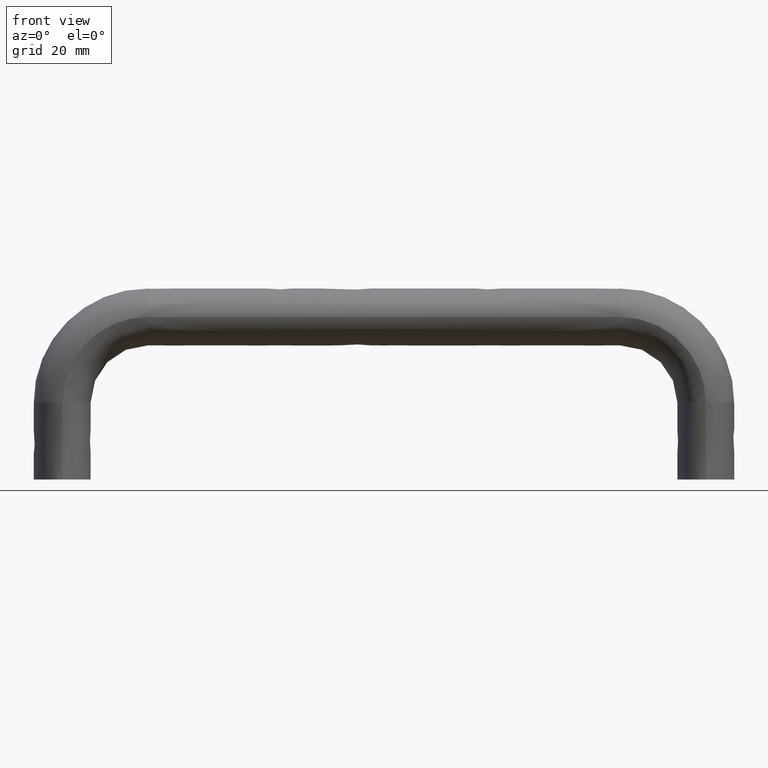
[diagram: clean part render]
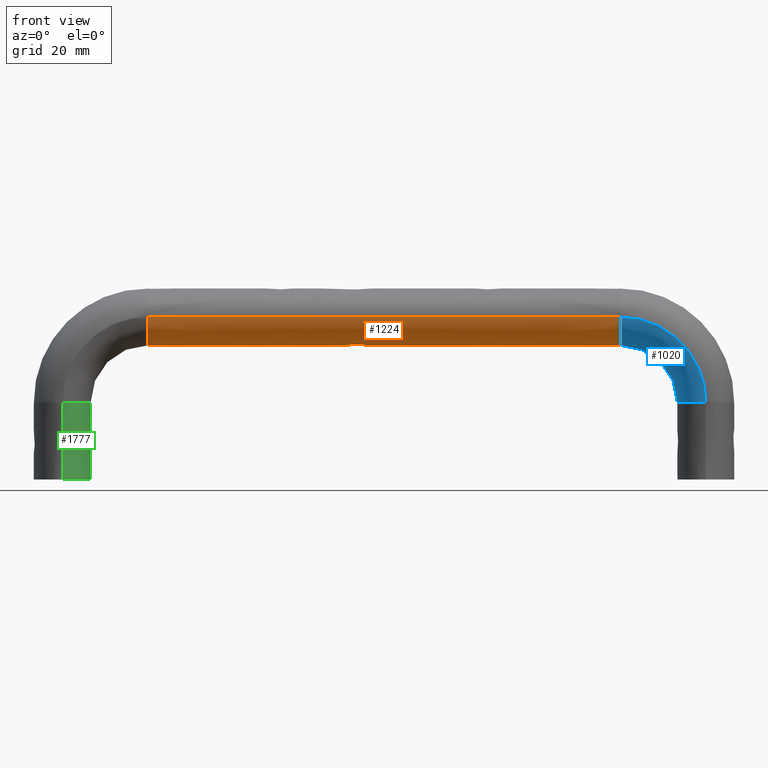
[diagram: same view with three faces highlighted in distinct colors, each labeled with its STEP entity id]
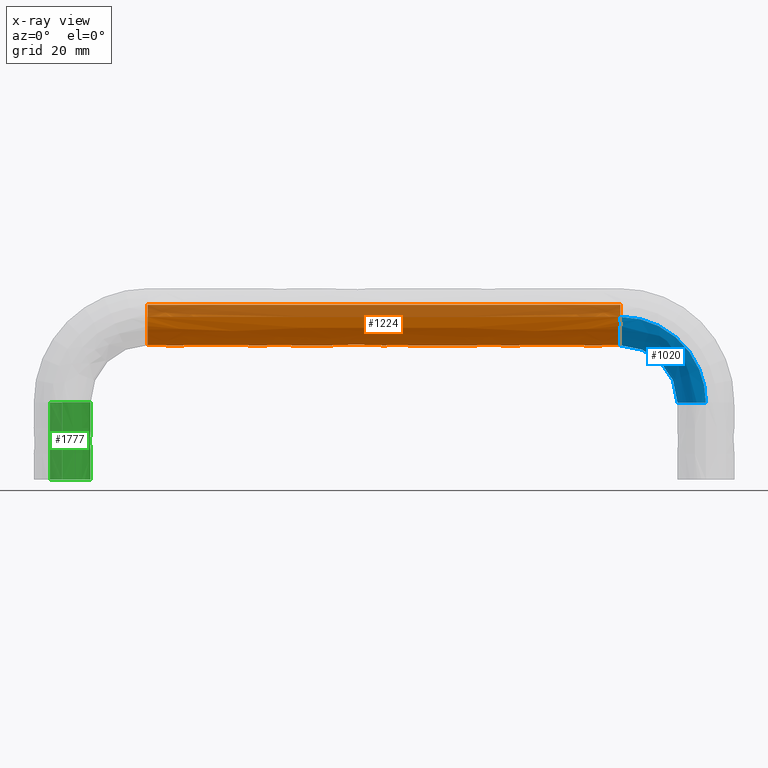
[diagram: x-ray of the same camera — body ghosted, the three highlighted faces saturated]
A machine part, front view with three faces highlighted in distinct colors.
The next image is the same camera in x-ray (body ghosted, the three faces saturated) — at least one of them is partly hidden behind the body in this view.
Their STEP definitions:

[orange] entity #1224 — the highlighted face is a freeform B-spline surface patch.
#850=CARTESIAN_POINT('',(166.500000000000000,11.762639561952421,44.880946613731197));
#851=VERTEX_POINT('',#850);
#865=CARTESIAN_POINT('',(166.500000000000000,13.0,48.500007999999987));
#866=VERTEX_POINT('',#865);
#867=CARTESIAN_POINT('',(166.500000000000000,11.762639561952421,44.880946613731197));
#868=CARTESIAN_POINT('',(166.500000000000000,11.849651458850300,45.001723964544240));
#869=CARTESIAN_POINT('',(166.500000000000000,11.932291401725539,45.123848960485148));
#870=CARTESIAN_POINT('',(166.500000000000000,12.661644796688099,46.275150982946101));
#871=CARTESIAN_POINT('',(166.500000000000000,13.0,47.387360601853601));
#872=CARTESIAN_POINT('',(166.500000000000000,13.0,48.500007999999987));
#873=B_SPLINE_CURVE_WITH_KNOTS('',3,(#867,#868,#869,#870,#871,#872),.UNSPECIFIED.,.F.,.U.,(4,2,4),(0.430000267191079,0.437500000000000,0.500000000000000),.UNSPECIFIED.);
#874=EDGE_CURVE('',#851,#866,#873,.T.);
#876=CARTESIAN_POINT('',(166.500000000000000,11.762630262037840,52.119082295067372));
#877=VERTEX_POINT('',#876);
#878=CARTESIAN_POINT('',(166.500000000000000,13.0,48.500007999999987));
#879=CARTESIAN_POINT('',(166.500000000000000,13.0,49.612655398146401));
#880=CARTESIAN_POINT('',(166.500000000000000,12.661644796688099,50.724865017053901));
#881=CARTESIAN_POINT('',(166.500000000000000,11.932288617726471,51.876171434124942));
#882=CARTESIAN_POINT('',(166.500000000000000,11.849645570385370,51.998300737397102));
#883=CARTESIAN_POINT('',(166.500000000000000,11.762630262037840,52.119082295067372));
#884=B_SPLINE_CURVE_WITH_KNOTS('',3,(#878,#879,#880,#881,#882,#883),.UNSPECIFIED.,.F.,.U.,(4,2,4),(0.500000000000000,0.562500000000000,0.570000000003387),.UNSPECIFIED.);
#885=EDGE_CURVE('',#866,#877,#884,.T.);
#887=CARTESIAN_POINT('',(166.500000000000000,-13.0,48.500007999999987));
#888=VERTEX_POINT('',#887);
#1002=CARTESIAN_POINT('',(166.500000000000000,-13.0,48.500007999999987));
#1003=CARTESIAN_POINT('',(166.500000000000000,-13.0,47.387360601853601));
#1004=CARTESIAN_POINT('',(166.500000000000000,-12.661644796688099,46.275150982946101));
#1005=CARTESIAN_POINT('',(166.500000000000000,-11.359223048605340,44.219246666847347));
#1006=CARTESIAN_POINT('',(166.500000000000000,-10.395668951176340,43.276360880213247));
#1007=CARTESIAN_POINT('',(166.500000000000000,-6.785826563922671,40.916079319316587));
#1008=CARTESIAN_POINT('',(166.500000000000000,-3.403392041388941,40.000007999999987));
#1009=CARTESIAN_POINT('',(166.500000000000000,3.403392041388945,40.000007999999987));
#1010=CARTESIAN_POINT('',(166.500000000000000,6.785826563922680,40.916079319316587));
#1011=CARTESIAN_POINT('',(166.500000000000000,10.251280399780510,43.181952981223667));
#1012=CARTESIAN_POINT('',(166.500000000000000,11.124526485222949,43.995210183488062));
#1013=CARTESIAN_POINT('',(166.500000000000000,11.762639561952421,44.880946613731197));
#1014=B_SPLINE_CURVE_WITH_KNOTS('',3,(#1002,#1003,#1004,#1005,#1006,#1007,#1008,#1009,#1010,#1011,#1012,#1013),.UNSPECIFIED.,.F.,.U.,(4,2,2,2,2,4),(0.0,0.062500000000000,0.125000000000000,0.250000000000000,0.375000000000000,0.430000267191079),.UNSPECIFIED.);
#1015=EDGE_CURVE('',#888,#851,#1014,.T.);
#1071=CARTESIAN_POINT('',(25.500000000000000,11.762630262037840,52.119082295067372));
#1072=VERTEX_POINT('',#1071);
#1073=CARTESIAN_POINT('',(25.500000000000000,11.762630262037840,52.119082295067372));
#1074=CARTESIAN_POINT('',(72.499999963886836,11.762630262096810,52.119573459018447));
#1075=CARTESIAN_POINT('',(119.500000036113090,11.762630262096810,52.119573459018447));
#1076=CARTESIAN_POINT('',(166.500000000000000,11.762630262037840,52.119082295067372));
#1077=B_SPLINE_CURVE_WITH_KNOTS('',3,(#1073,#1074,#1075,#1076),.UNSPECIFIED.,.F.,.U.,(4,4),(0.236064415137849,0.763935584862151),.UNSPECIFIED.);
#1078=EDGE_CURVE('',#1072,#877,#1077,.T.);
#1080=CARTESIAN_POINT('',(25.500000000000011,-13.0,48.500007999999987));
#1081=VERTEX_POINT('',#1080);
#1097=CARTESIAN_POINT('',(25.500000000000000,-13.0,48.500007999999987));
#1098=CARTESIAN_POINT('',(72.499999968239862,-13.0,48.500468564901702));
#1099=CARTESIAN_POINT('',(119.500000031760090,-13.0,48.500468564901702));
#1100=CARTESIAN_POINT('',(166.500000000000000,-13.0,48.500007999999987));
#1101=B_SPLINE_CURVE_WITH_KNOTS('',3,(#1097,#1098,#1099,#1100),.UNSPECIFIED.,.F.,.U.,(4,4),(0.236064415137849,0.763935584862151),.UNSPECIFIED.);
#1102=EDGE_CURVE('',#1081,#888,#1101,.T.);
#1107=CARTESIAN_POINT('',(25.500000000000000,-13.0,48.500007999999987));
#1108=CARTESIAN_POINT('',(25.500000000000000,-13.0,47.387360601853601));
#1109=CARTESIAN_POINT('',(25.500000000000000,-12.661644796688099,46.275150982946101));
#1110=CARTESIAN_POINT('',(25.500000000000000,-11.359223048605340,44.219246666847347));
#1111=CARTESIAN_POINT('',(25.500000000000000,-10.395668951176340,43.276360880213247));
#1112=CARTESIAN_POINT('',(25.500000000000000,-6.785826563922671,40.916079319316587));
#1113=CARTESIAN_POINT('',(25.500000000000000,-3.403392041388941,40.000007999999987));
#1114=CARTESIAN_POINT('',(25.500000000000000,3.403392041388945,40.000007999999987));
#1115=CARTESIAN_POINT('',(25.500000000000000,6.785826563922680,40.916079319316587));
#1116=CARTESIAN_POINT('',(25.500000000000000,10.395668951176340,43.276360880213247));
#1117=CARTESIAN_POINT('',(25.500000000000000,11.359223048605340,44.219246666847347));
#1118=CARTESIAN_POINT('',(25.500000000000000,12.661644796688099,46.275150982946101));
#1119=CARTESIAN_POINT('',(25.500000000000000,13.0,47.387360601853601));
#1120=CARTESIAN_POINT('',(25.500000000000000,13.0,49.612655398146401));
#1121=CARTESIAN_POINT('',(25.500000000000000,12.661644796688099,50.724865017053901));
#1122=CARTESIAN_POINT('',(25.500000000000000,11.932288617761770,51.876171434069242));
#1123=CARTESIAN_POINT('',(25.500000000000000,11.849645570460019,51.998300737286783));
#1124=CARTESIAN_POINT('',(25.500000000000000,11.762630262096810,52.119082294985532));
#1125=CARTESIAN_POINT('',(72.499999968239862,-13.0,48.500468564901702));
#1126=CARTESIAN_POINT('',(72.499999969626302,-13.0,47.387811109256297));
#1127=CARTESIAN_POINT('',(72.499999971057491,-12.661644796688099,46.275590748792503));
#1128=CARTESIAN_POINT('',(72.499999973781001,-11.359223048605340,44.219665230619050));
#1129=CARTESIAN_POINT('',(72.499999975063091,-10.395668951176340,43.276769083277699));
#1130=CARTESIAN_POINT('',(72.499999978356101,-6.785826563922671,40.916459613865747));
#1131=CARTESIAN_POINT('',(72.499999979663897,-3.403392041388941,40.000376627521703));
#1132=CARTESIAN_POINT('',(72.499999979663897,3.403392041388945,40.000376627521703));
#1133=CARTESIAN_POINT('',(72.499999978356101,6.785826563922680,40.916459613865747));
#1134=CARTESIAN_POINT('',(72.499999975063091,10.395668951176340,43.276769083277749));
#1135=CARTESIAN_POINT('',(72.499999973781001,11.359223048605340,44.219665230797062));
#1136=CARTESIAN_POINT('',(72.499999971057491,12.661644796688099,46.275590748792503));
#1137=CARTESIAN_POINT('',(72.499999969626302,13.0,47.387811109089597));
#1138=CARTESIAN_POINT('',(72.499999966853395,13.0,49.613126020547099));
#1139=CARTESIAN_POINT('',(72.499999965512700,12.661644796688099,50.725345062661702));
#1140=CARTESIAN_POINT('',(72.499999964168921,11.932288617761770,51.876660675113627));
#1141=CARTESIAN_POINT('',(72.499999964026856,11.849645570460019,51.998790947986002));
#1142=CARTESIAN_POINT('',(72.499999963886836,11.762630262096810,52.119573459018447));
#1143=CARTESIAN_POINT('',(119.500000031760090,-13.0,48.500468564901702));
#1144=CARTESIAN_POINT('',(119.500000030373600,-13.0,47.387811109256297));
#1145=CARTESIAN_POINT('',(119.500000028942400,-12.661644796688099,46.275590748792503));
#1146=CARTESIAN_POINT('',(119.500000026219000,-11.359223048605340,44.219665230619050));
#1147=CARTESIAN_POINT('',(119.500000024936990,-10.395668951176340,43.276769083277699));
#1148=CARTESIAN_POINT('',(119.500000021643800,-6.785826563922671,40.916459613865747));
#1149=CARTESIAN_POINT('',(119.500000020336000,-3.403392041388941,40.000376627521703));
#1150=CARTESIAN_POINT('',(119.500000020336000,3.403392041388945,40.000376627521703));
#1151=CARTESIAN_POINT('',(119.500000021643800,6.785826563922680,40.916459613865747));
#1152=CARTESIAN_POINT('',(119.500000024936990,10.395668951176340,43.276769083277699));
#1153=CARTESIAN_POINT('',(119.500000026219000,11.359223048605340,44.219665230797062));
#1154=CARTESIAN_POINT('',(119.500000028942400,12.661644796688099,46.275590748792503));
#1155=CARTESIAN_POINT('',(119.500000030373600,13.0,47.387811109089597));
#1156=CARTESIAN_POINT('',(119.500000033146610,13.0,49.613126020547099));
#1157=CARTESIAN_POINT('',(119.500000034487200,12.661644796688099,50.725345062661702));
#1158=CARTESIAN_POINT('',(119.500000035830990,11.932288617761770,51.876660675113627));
#1159=CARTESIAN_POINT('',(119.500000035973000,11.849645570460019,51.998790947986002));
#1160=CARTESIAN_POINT('',(119.500000036113090,11.762630262096810,52.119573459018447));
#1161=CARTESIAN_POINT('',(166.500000000000000,-13.0,48.500007999999987));
#1162=CARTESIAN_POINT('',(166.500000000000000,-13.0,47.387360601853601));
#1163=CARTESIAN_POINT('',(166.500000000000000,-12.661644796688099,46.275150982946101));
#1164=CARTESIAN_POINT('',(166.500000000000000,-11.359223048605340,44.219246666847347));
#1165=CARTESIAN_POINT('',(166.500000000000000,-10.395668951176340,43.276360880213247));
#1166=CARTESIAN_POINT('',(166.500000000000000,-6.785826563922671,40.916079319316587));
#1167=CARTESIAN_POINT('',(166.500000000000000,-3.403392041388941,40.000007999999987));
#1168=CARTESIAN_POINT('',(166.500000000000000,3.403392041388945,40.000007999999987));
#1169=CARTESIAN_POINT('',(166.500000000000000,6.785826563922680,40.916079319316587));
#1170=CARTESIAN_POINT('',(166.500000000000000,10.395668951176340,43.276360880213247));
#1171=CARTESIAN_POINT('',(166.500000000000000,11.359223048605340,44.219246666847347));
#1172=CARTESIAN_POINT('',(166.500000000000000,12.661644796688099,46.275150982946101));
#1173=CARTESIAN_POINT('',(166.500000000000000,13.0,47.387360601853601));
#1174=CARTESIAN_POINT('',(166.500000000000000,13.0,49.612655398146401));
#1175=CARTESIAN_POINT('',(166.500000000000000,12.661644796688099,50.724865017053901));
#1176=CARTESIAN_POINT('',(166.500000000000000,11.932288617761770,51.876171434069242));
#1177=CARTESIAN_POINT('',(166.500000000000000,11.849645570460019,51.998300737286783));
#1178=CARTESIAN_POINT('',(166.500000000000000,11.762630262096810,52.119082294985532));
#1179=B_SPLINE_SURFACE_WITH_KNOTS('',3,3,((#1107,#1125,#1143,#1161),(#1108,#1126,#1144,#1162),(#1109,#1127,#1145,#1163),(#1110,#1128,#1146,#1164),(#1111,#1129,#1147,#1165),(#1112,#1130,#1148,#1166),(#1113,#1131,#1149,#1167),(#1114,#1132,#1150,#1168),(#1115,#1133,#1151,#1169),(#1116,#1134,#1152,#1170),(#1117,#1135,#1153,#1171),(#1118,#1136,#1154,#1172),(#1119,#1137,#1155,#1173),(#1120,#1138,#1156,#1174),(#1121,#1139,#1157,#1175),(#1122,#1140,#1158,#1176),(#1123,#1141,#1159,#1177),(#1124,#1142,#1160,#1178)),.UNSPECIFIED.,.F.,.F.,.U.,(4,2,2,2,2,2,2,2,4),(4,4),(0.0,5.001749029276328,10.003498058552660,20.006996117105309,30.010494175657971,35.012243204934300,40.013992234210633,45.015741263486952,45.615951147000111),(0.0,141.000000036968690),.UNSPECIFIED.);
#1180=ORIENTED_EDGE('',*,*,#885,.F.);
#1181=ORIENTED_EDGE('',*,*,#874,.F.);
#1182=ORIENTED_EDGE('',*,*,#1015,.F.);
#1183=ORIENTED_EDGE('',*,*,#1102,.F.);
#1184=CARTESIAN_POINT('',(25.500000000000000,11.762639561952421,44.880946613731197));
#1185=VERTEX_POINT('',#1184);
#1186=CARTESIAN_POINT('',(25.500000000000000,-13.0,48.500007999999987));
#1187=CARTESIAN_POINT('',(25.500000000000000,-13.0,47.387360601853601));
#1188=CARTESIAN_POINT('',(25.500000000000000,-12.661644796688099,46.275150982946101));
#1189=CARTESIAN_POINT('',(25.500000000000000,-11.359223048605340,44.219246666847347));
#1190=CARTESIAN_POINT('',(25.500000000000000,-10.395668951176340,43.276360880213247));
#1191=CARTESIAN_POINT('',(25.500000000000000,-6.785826563922671,40.916079319316587));
#1192=CARTESIAN_POINT('',(25.500000000000000,-3.403392041388941,40.000007999999987));
#1193=CARTESIAN_POINT('',(25.500000000000000,3.403392041388945,40.000007999999987));
#1194=CARTESIAN_POINT('',(25.500000000000000,6.785826563922680,40.916079319316587));
#1195=CARTESIAN_POINT('',(25.500000000000000,10.251280399780510,43.181952981223667));
#1196=CARTESIAN_POINT('',(25.500000000000000,11.124526485222949,43.995210183488062));
#1197=CARTESIAN_POINT('',(25.500000000000000,11.762639561952421,44.880946613731197));
#1198=B_SPLINE_CURVE_WITH_KNOTS('',3,(#1186,#1187,#1188,#1189,#1190,#1191,#1192,#1193,#1194,#1195,#1196,#1197),.UNSPECIFIED.,.F.,.U.,(4,2,2,2,2,4),(0.0,0.062500000000000,0.125000000000000,0.250000000000000,0.375000000000000,0.430000267191079),.UNSPECIFIED.);
#1199=EDGE_CURVE('',#1081,#1185,#1198,.T.);
#1200=ORIENTED_EDGE('',*,*,#1199,.T.);
#1201=CARTESIAN_POINT('',(25.500000000000000,13.0,48.500007999999987));
#1202=VERTEX_POINT('',#1201);
#1203=CARTESIAN_POINT('',(25.500000000000000,11.762639561952421,44.880946613731197));
#1204=CARTESIAN_POINT('',(25.500000000000000,11.849651458850300,45.001723964544240));
#1205=CARTESIAN_POINT('',(25.500000000000000,11.932291401725539,45.123848960485148));
#1206=CARTESIAN_POINT('',(25.500000000000000,12.661644796688099,46.275150982946101));
#1207=CARTESIAN_POINT('',(25.500000000000000,13.0,47.387360601853601));
#1208=CARTESIAN_POINT('',(25.500000000000000,13.0,48.500007999999987));
#1209=B_SPLINE_CURVE_WITH_KNOTS('',3,(#1203,#1204,#1205,#1206,#1207,#1208),.UNSPECIFIED.,.F.,.U.,(4,2,4),(0.430000267191079,0.437500000000000,0.500000000000000),.UNSPECIFIED.);
#1210=EDGE_CURVE('',#1185,#1202,#1209,.T.);
#1211=ORIENTED_EDGE('',*,*,#1210,.T.);
#1212=CARTESIAN_POINT('',(25.500000000000000,13.0,48.500007999999987));
#1213=CARTESIAN_POINT('',(25.500000000000000,13.0,49.612655398146401));
#1214=CARTESIAN_POINT('',(25.500000000000000,12.661644796688099,50.724865017053901));
#1215=CARTESIAN_POINT('',(25.500000000000000,11.932288617726471,51.876171434124942));
#1216=CARTESIAN_POINT('',(25.500000000000000,11.849645570385370,51.998300737397102));
#1217=CARTESIAN_POINT('',(25.500000000000000,11.762630262037840,52.119082295067372));
#1218=B_SPLINE_CURVE_WITH_KNOTS('',3,(#1212,#1213,#1214,#1215,#1216,#1217),.UNSPECIFIED.,.F.,.U.,(4,2,4),(0.500000000000000,0.562500000000000,0.570000000003387),.UNSPECIFIED.);
#1219=EDGE_CURVE('',#1202,#1072,#1218,.T.);
#1220=ORIENTED_EDGE('',*,*,#1219,.T.);
#1221=ORIENTED_EDGE('',*,*,#1078,.T.);
#1222=EDGE_LOOP('',(#1180,#1181,#1182,#1183,#1200,#1211,#1220,#1221));
#1223=FACE_OUTER_BOUND('',#1222,.T.);
#1224=ADVANCED_FACE('',(#1223),#1179,.T.);

[blue] entity #1020 — the highlighted face is a freeform B-spline surface patch.
#467=CARTESIAN_POINT('',(192.0,-13.0,23.000007999999990));
#468=VERTEX_POINT('',#467);
#639=CARTESIAN_POINT('',(188.380938613731300,11.762639561952421,23.000008000000001));
#640=VERTEX_POINT('',#639);
#641=CARTESIAN_POINT('',(192.0,-13.0,23.000008000000001));
#642=CARTESIAN_POINT('',(190.887352601853510,-13.0,23.000008000000001));
#643=CARTESIAN_POINT('',(189.775142982945990,-12.661644796688099,23.000008000000001));
#644=CARTESIAN_POINT('',(187.719238666847500,-11.359223048605340,23.000008000000001));
#645=CARTESIAN_POINT('',(186.776352880213010,-10.395668951176340,23.000008000000001));
#646=CARTESIAN_POINT('',(184.416071319316500,-6.785826563922671,23.000008000000001));
#647=CARTESIAN_POINT('',(183.500000000000000,-3.403392041388941,23.000008000000001));
#648=CARTESIAN_POINT('',(183.500000000000000,3.403392041388945,23.000008000000001));
#649=CARTESIAN_POINT('',(184.416071319316500,6.785826563922680,23.000008000000001));
#650=CARTESIAN_POINT('',(186.681944981223410,10.251280399780500,23.000008000000001));
#651=CARTESIAN_POINT('',(187.495202183488090,11.124526485222940,23.000008000000001));
#652=CARTESIAN_POINT('',(188.380938613731300,11.762639561952421,23.000008000000001));
#653=B_SPLINE_CURVE_WITH_KNOTS('',3,(#641,#642,#643,#644,#645,#646,#647,#648,#649,#650,#651,#652),.UNSPECIFIED.,.F.,.U.,(4,2,2,2,2,4),(0.0,0.062500000000000,0.125000000000000,0.250000000000000,0.375000000000000,0.430000267191079),.UNSPECIFIED.);
#654=EDGE_CURVE('',#468,#640,#653,.T.);
#850=CARTESIAN_POINT('',(166.500000000000000,11.762639561952421,44.880946613731197));
#851=VERTEX_POINT('',#850);
#852=CARTESIAN_POINT('',(166.500000000000000,11.762639561952421,44.880946613731197));
#853=CARTESIAN_POINT('',(169.364675610311200,11.762639561952421,44.880919812661091));
#854=CARTESIAN_POINT('',(172.227287973078600,11.762639561952421,44.311442784893572));
#855=CARTESIAN_POINT('',(177.519653453731710,11.762639561952421,42.119271932496268));
#856=CARTESIAN_POINT('',(179.946856461592200,11.762639561952421,40.497466336408998));
#857=CARTESIAN_POINT('',(183.997458336434110,11.762639561952421,36.446864461617203));
#858=CARTESIAN_POINT('',(185.619263932529410,11.762639561952421,34.019661453675113));
#859=CARTESIAN_POINT('',(187.811434784860210,11.762639561952421,28.727295973135391));
#860=CARTESIAN_POINT('',(188.380911812654400,11.762639561952421,25.864683610268489));
#861=CARTESIAN_POINT('',(188.380938613731300,11.762639561952421,23.000008000000001));
#862=B_SPLINE_CURVE_WITH_KNOTS('',3,(#852,#853,#854,#855,#856,#857,#858,#859,#860,#861),.UNSPECIFIED.,.F.,.U.,(4,2,2,2,4),(0.763935584862151,0.801425019982379,0.838914455102606,0.876403890222834,0.913893325343062),.UNSPECIFIED.);
#863=EDGE_CURVE('',#851,#640,#862,.T.);
#887=CARTESIAN_POINT('',(166.500000000000000,-13.0,48.500007999999987));
#888=VERTEX_POINT('',#887);
#904=CARTESIAN_POINT('',(166.500000000000000,-13.0,48.500007999999987));
#905=CARTESIAN_POINT('',(169.838487934559310,-13.0,48.499975254139699));
#906=CARTESIAN_POINT('',(173.174571173024500,-13.0,47.836311204570400));
#907=CARTESIAN_POINT('',(179.342283877595010,-13.0,45.281560953505213));
#908=CARTESIAN_POINT('',(182.170941452666710,-13.0,43.391512387852742));
#909=CARTESIAN_POINT('',(186.891504387846990,-13.0,38.670949452661041));
#910=CARTESIAN_POINT('',(188.781552953568710,-13.0,35.842291877537221));
#911=CARTESIAN_POINT('',(191.336303204506490,-13.0,29.674579173082378));
#912=CARTESIAN_POINT('',(191.999967254163010,-13.0,26.338495934515620));
#913=CARTESIAN_POINT('',(192.0,-13.0,23.000008000000001));
#914=B_SPLINE_CURVE_WITH_KNOTS('',3,(#904,#905,#906,#907,#908,#909,#910,#911,#912,#913),.UNSPECIFIED.,.F.,.U.,(4,2,2,2,4),(0.763935584862151,0.801425019982379,0.838914455102606,0.876403890222834,0.913893325343062),.UNSPECIFIED.);
#915=EDGE_CURVE('',#888,#468,#914,.T.);
#922=CARTESIAN_POINT('',(166.298788058877390,-13.0,48.614835258292253));
#923=CARTESIAN_POINT('',(166.307827576704600,-13.022930783809819,47.464080008330939));
#924=CARTESIAN_POINT('',(166.325652001738890,-12.356185622353481,45.194982140790223));
#925=CARTESIAN_POINT('',(166.340723955545510,-10.395617697028310,43.276281372465981));
#926=CARTESIAN_POINT('',(166.359264021755310,-6.785826563922671,40.916080458063952));
#927=CARTESIAN_POINT('',(166.366460029764110,-3.403392041388941,40.000009047372508));
#928=CARTESIAN_POINT('',(166.366460029764110,3.403392041388945,40.000009047372508));
#929=CARTESIAN_POINT('',(166.359264021719500,6.785826548948666,40.916080462615419));
#930=CARTESIAN_POINT('',(166.341252325305700,10.292674834812530,43.209018463155559));
#931=CARTESIAN_POINT('',(166.334575543760910,11.192472214836350,44.058990938055047));
#932=CARTESIAN_POINT('',(166.327302883617700,11.837472771998581,44.984820384291517));
#933=CARTESIAN_POINT('',(169.719071904955600,-13.0,48.641256225681872));
#934=CARTESIAN_POINT('',(169.574453961120610,-13.022930783809819,47.489314717277622));
#935=CARTESIAN_POINT('',(169.289291438896500,-12.356185622353490,45.217877640585179));
#936=CARTESIAN_POINT('',(169.048164088757800,-10.395617697028300,43.297198708672397));
#937=CARTESIAN_POINT('',(168.751552441458390,-6.785826563922670,40.934564317852228));
#938=CARTESIAN_POINT('',(168.636427728838610,-3.403392041388939,40.017548337604161));
#939=CARTESIAN_POINT('',(168.636427728838610,3.403392041388944,40.017548337604161));
#940=CARTESIAN_POINT('',(168.751552442030400,6.785826548948665,40.934564322409358));
#941=CARTESIAN_POINT('',(169.039711010806290,10.292674834812530,43.229866448789217));
#942=CARTESIAN_POINT('',(169.146528923214700,11.192472214836350,44.080715239658737));
#943=CARTESIAN_POINT('',(169.262879947693510,11.837472771998581,45.007499170118606));
#944=CARTESIAN_POINT('',(176.500357076376300,-13.0,47.319239785333387));
#945=CARTESIAN_POINT('',(176.051087468437200,-13.022930783809819,46.226689408438347));
#946=CARTESIAN_POINT('',(175.165202559845990,-12.356185622353490,44.072361897032522));
#947=CARTESIAN_POINT('',(174.416117172581690,-10.395617697028300,42.250708548276222));
#948=CARTESIAN_POINT('',(173.494664465994300,-6.785826563922671,40.009886063104240));
#949=CARTESIAN_POINT('',(173.137018438610400,-3.403392041388942,39.140149354881473));
#950=CARTESIAN_POINT('',(173.137018438610400,3.403392041388944,39.140149354881473));
#951=CARTESIAN_POINT('',(173.494664467771200,6.785826548948667,40.009886067420773));
#952=CARTESIAN_POINT('',(174.389856870134710,10.292674834812530,42.186847781546490));
#953=CARTESIAN_POINT('',(174.721697025217910,11.192472214836339,42.993828854229491));
#954=CARTESIAN_POINT('',(175.083152714769600,11.837472771998581,43.872830083018769));
#955=CARTESIAN_POINT('',(185.083971783668400,-13.0,41.583966859069257));
#956=CARTESIAN_POINT('',(184.249080303849810,-13.022930783809819,40.749075963376043));
#957=CARTESIAN_POINT('',(182.602813219542100,-12.356185622353490,39.102810030353091));
#958=CARTESIAN_POINT('',(181.210764859570900,-10.395617697028310,37.710762643010050));
#959=CARTESIAN_POINT('',(179.498401006631010,-6.785826563922671,35.998399985881562));
#960=CARTESIAN_POINT('',(178.833776407884100,-3.403392041388941,35.333775850984892));
#961=CARTESIAN_POINT('',(178.833776407884100,3.403392041388945,35.333775850984892));
#962=CARTESIAN_POINT('',(179.498401009933190,6.785826548948666,35.998399989183717));
#963=CARTESIAN_POINT('',(181.161964533430310,10.292674834812530,37.661962350948713));
#964=CARTESIAN_POINT('',(181.778633275958100,11.192472214836350,38.278630662626597));
#965=CARTESIAN_POINT('',(182.450337470460910,11.837472771998581,38.950334387619613));
#966=CARTESIAN_POINT('',(190.819275868489000,-13.0,33.000375555087857));
#967=CARTESIAN_POINT('',(189.726723516830990,-13.022930783809819,32.551105493155909));
#968=CARTESIAN_POINT('',(187.572392110740510,-12.356185622353481,31.665219686950010));
#969=CARTESIAN_POINT('',(185.750735467235100,-10.395617697028310,30.916133536443390));
#970=CARTESIAN_POINT('',(183.509908928190700,-6.785826563922668,29.994679887949161));
#971=CARTESIAN_POINT('',(182.640170646067500,-3.403392041388939,29.637033493633052));
#972=CARTESIAN_POINT('',(182.640170646067500,3.403392041388945,29.637033493633052));
#973=CARTESIAN_POINT('',(183.509908932511990,6.785826548948665,29.994679889730740));
#974=CARTESIAN_POINT('',(185.686874584977600,10.292674834812530,30.889873207172329));
#975=CARTESIAN_POINT('',(186.493857117249010,11.192472214836350,31.221713700409829));
#976=CARTESIAN_POINT('',(187.372859935529500,11.837472771998581,31.583169757350781));
#977=CARTESIAN_POINT('',(192.141238328053190,-13.0,26.219067523452360));
#978=CARTESIAN_POINT('',(190.989297259767800,-13.022930783809819,26.074450132497532));
#979=CARTESIAN_POINT('',(188.717861051551490,-12.356185622353490,25.789288700920761));
#980=CARTESIAN_POINT('',(186.797182855186800,-10.395617697028310,25.548162273888860));
#981=CARTESIAN_POINT('',(184.434549369980290,-6.785826563922670,25.251551762688230));
#982=CARTESIAN_POINT('',(183.517533741596910,-3.403392041388941,25.136427491299241));
#983=CARTESIAN_POINT('',(183.517533741596910,3.403392041388945,25.136427491299241));
#984=CARTESIAN_POINT('',(184.434549374536490,6.785826548948665,25.251551763259240));
#985=CARTESIAN_POINT('',(186.729850621115110,10.292674834812530,25.539709228310802));
#986=CARTESIAN_POINT('',(187.580699086114010,11.192472214836350,25.646526731780099));
#987=CARTESIAN_POINT('',(188.507482661908310,11.837472771998581,25.762877311018190));
#988=CARTESIAN_POINT('',(192.114827258290890,-13.0,22.798796055050911));
#989=CARTESIAN_POINT('',(190.964072008329200,-13.022930783809819,22.807835573048969));
#990=CARTESIAN_POINT('',(188.694974140792600,-12.356185622353481,22.825659998424481));
#991=CARTESIAN_POINT('',(186.776273372465910,-10.395617697028310,22.840731952515071));
#992=CARTESIAN_POINT('',(184.416072458062700,-6.785826563922671,22.859272019079299));
#993=CARTESIAN_POINT('',(183.500001047370890,-3.403392041388941,22.866468027225050));
#994=CARTESIAN_POINT('',(183.500001047370890,3.403392041388945,22.866468027225050));
#995=CARTESIAN_POINT('',(184.416072462614210,6.785826548948666,22.859272019043541));
#996=CARTESIAN_POINT('',(186.709010463155290,10.292674834812530,22.841260322285400));
#997=CARTESIAN_POINT('',(187.558982938055690,11.192472214836350,22.834583540614808));
#998=CARTESIAN_POINT('',(188.484812384292010,11.837472771998581,22.827310880333730));
#999=B_SPLINE_SURFACE_WITH_KNOTS('',3,3,((#922,#933,#944,#955,#966,#977,#988),(#923,#934,#945,#956,#967,#978,#989),(#924,#935,#946,#957,#968,#979,#990),(#925,#936,#947,#958,#969,#980,#991),(#926,#937,#948,#959,#970,#981,#992),(#927,#938,#949,#960,#971,#982,#993),(#928,#939,#950,#961,#972,#983,#994),(#929,#940,#951,#962,#973,#984,#995),(#930,#941,#952,#963,#974,#985,#996),(#931,#942,#953,#964,#975,#986,#997),(#932,#943,#954,#965,#976,#987,#998)),.UNSPECIFIED.,.F.,.F.,.U.,(4,1,2,2,2,4),(4,1,1,1,4),(0.0,5.173813030898928,10.175565668013130,20.179070942241541,30.182576216469950,34.756200313687252),(0.0,10.261157678222860,20.321115517732050,30.381073357241480,40.642231039293357),.UNSPECIFIED.);
#1000=ORIENTED_EDGE('',*,*,#654,.F.);
#1001=ORIENTED_EDGE('',*,*,#915,.F.);
#1002=CARTESIAN_POINT('',(166.500000000000000,-13.0,48.500007999999987));
#1003=CARTESIAN_POINT('',(166.500000000000000,-13.0,47.387360601853601));
#1004=CARTESIAN_POINT('',(166.500000000000000,-12.661644796688099,46.275150982946101));
#1005=CARTESIAN_POINT('',(166.500000000000000,-11.359223048605340,44.219246666847347));
#1006=CARTESIAN_POINT('',(166.500000000000000,-10.395668951176340,43.276360880213247));
#1007=CARTESIAN_POINT('',(166.500000000000000,-6.785826563922671,40.916079319316587));
#1008=CARTESIAN_POINT('',(166.500000000000000,-3.403392041388941,40.000007999999987));
#1009=CARTESIAN_POINT('',(166.500000000000000,3.403392041388945,40.000007999999987));
#1010=CARTESIAN_POINT('',(166.500000000000000,6.785826563922680,40.916079319316587));
#1011=CARTESIAN_POINT('',(166.500000000000000,10.251280399780510,43.181952981223667));
#1012=CARTESIAN_POINT('',(166.500000000000000,11.124526485222949,43.995210183488062));
#1013=CARTESIAN_POINT('',(166.500000000000000,11.762639561952421,44.880946613731197));
#1014=B_SPLINE_CURVE_WITH_KNOTS('',3,(#1002,#1003,#1004,#1005,#1006,#1007,#1008,#1009,#1010,#1011,#1012,#1013),.UNSPECIFIED.,.F.,.U.,(4,2,2,2,2,4),(0.0,0.062500000000000,0.125000000000000,0.250000000000000,0.375000000000000,0.430000267191079),.UNSPECIFIED.);
#1015=EDGE_CURVE('',#888,#851,#1014,.T.);
#1016=ORIENTED_EDGE('',*,*,#1015,.T.);
#1017=ORIENTED_EDGE('',*,*,#863,.T.);
#1018=EDGE_LOOP('',(#1000,#1001,#1016,#1017));
#1019=FACE_OUTER_BOUND('',#1018,.T.);
#1020=ADVANCED_FACE('',(#1019),#999,.T.);

[green] entity #1777 — the highlighted face is a freeform B-spline surface patch.
#1407=CARTESIAN_POINT('',(3.619061386268793,11.762639561952421,23.000008000000001));
#1408=VERTEX_POINT('',#1407);
#1422=CARTESIAN_POINT('',(-1.951564E-015,13.0,23.000008000000001));
#1423=VERTEX_POINT('',#1422);
#1424=CARTESIAN_POINT('',(3.619061386268793,11.762639561952421,23.000008000000001));
#1425=CARTESIAN_POINT('',(3.498284035455757,11.849651458850300,23.000008000000001));
#1426=CARTESIAN_POINT('',(3.376159039514845,11.932291401725539,23.000008000000001));
#1427=CARTESIAN_POINT('',(2.224857017053885,12.661644796688099,23.000008000000001));
#1428=CARTESIAN_POINT('',(1.112647398146382,13.0,23.000008000000001));
#1429=CARTESIAN_POINT('',(-1.951564E-015,13.0,23.000008000000001));
#1430=B_SPLINE_CURVE_WITH_KNOTS('',3,(#1424,#1425,#1426,#1427,#1428,#1429),.UNSPECIFIED.,.F.,.U.,(4,2,4),(0.430000267191079,0.437500000000000,0.500000000000000),.UNSPECIFIED.);
#1431=EDGE_CURVE('',#1408,#1423,#1430,.T.);
#1433=CARTESIAN_POINT('',(-3.619074295067323,11.762630262037840,23.000008000000001));
#1434=VERTEX_POINT('',#1433);
#1435=CARTESIAN_POINT('',(-1.951564E-015,13.0,23.000008000000001));
#1436=CARTESIAN_POINT('',(-1.112647398146386,13.0,23.000008000000001));
#1437=CARTESIAN_POINT('',(-2.224857017053880,12.661644796688099,23.000008000000001));
#1438=CARTESIAN_POINT('',(-3.376163434124901,11.932288617726471,23.000008000000001));
#1439=CARTESIAN_POINT('',(-3.498292737397053,11.849645570385370,23.000008000000001));
#1440=CARTESIAN_POINT('',(-3.619074295067323,11.762630262037840,23.000008000000001));
#1441=B_SPLINE_CURVE_WITH_KNOTS('',3,(#1435,#1436,#1437,#1438,#1439,#1440),.UNSPECIFIED.,.F.,.U.,(4,2,4),(0.500000000000000,0.562500000000000,0.570000000003387),.UNSPECIFIED.);
#1442=EDGE_CURVE('',#1423,#1434,#1441,.T.);
#1444=CARTESIAN_POINT('',(8.991289E-016,-13.0,23.000008000000001));
#1445=VERTEX_POINT('',#1444);
#1559=CARTESIAN_POINT('',(9.757820E-016,-13.0,23.000008000000001));
#1560=CARTESIAN_POINT('',(1.112647398146386,-13.0,23.000008000000001));
#1561=CARTESIAN_POINT('',(2.224857017053890,-12.661644796688099,23.000008000000001));
#1562=CARTESIAN_POINT('',(4.280761333152650,-11.359223048605340,23.000008000000001));
#1563=CARTESIAN_POINT('',(5.223647119786780,-10.395668951176340,23.000008000000001));
#1564=CARTESIAN_POINT('',(7.583928680683410,-6.785826563922671,23.000008000000001));
#1565=CARTESIAN_POINT('',(8.500000000000000,-3.403392041388941,23.000008000000001));
#1566=CARTESIAN_POINT('',(8.500000000000000,3.403392041388945,23.000008000000001));
#1567=CARTESIAN_POINT('',(7.583928680683410,6.785826563922680,23.000008000000001));
#1568=CARTESIAN_POINT('',(5.318055018776355,10.251280399780510,23.000008000000001));
#1569=CARTESIAN_POINT('',(4.504797816511950,11.124526485222940,23.000008000000001));
#1570=CARTESIAN_POINT('',(3.619061386268793,11.762639561952421,23.000008000000001));
#1571=B_SPLINE_CURVE_WITH_KNOTS('',3,(#1559,#1560,#1561,#1562,#1563,#1564,#1565,#1566,#1567,#1568,#1569,#1570),.UNSPECIFIED.,.F.,.U.,(4,2,2,2,2,4),(0.0,0.062500000000000,0.125000000000000,0.250000000000000,0.375000000000000,0.430000267191079),.UNSPECIFIED.);
#1572=EDGE_CURVE('',#1445,#1408,#1571,.T.);
#1628=CARTESIAN_POINT('',(-3.619217702183123,11.762830137887130,0.0));
#1629=VERTEX_POINT('',#1628);
#1630=CARTESIAN_POINT('',(-3.619217702183123,11.762830137887130,0.0));
#1631=CARTESIAN_POINT('',(-3.619169899811199,11.762763512604050,7.666669331890400));
#1632=CARTESIAN_POINT('',(-3.619202216413847,11.762696887320921,15.333338668587890));
#1633=CARTESIAN_POINT('',(-3.619074295067323,11.762630262037840,23.000008000000001));
#1634=B_SPLINE_CURVE_WITH_KNOTS('',3,(#1630,#1631,#1632,#1633),.UNSPECIFIED.,.F.,.U.,(4,4),(0.0,0.086106674656938),.UNSPECIFIED.);
#1635=EDGE_CURVE('',#1629,#1434,#1634,.T.);
#1637=CARTESIAN_POINT('',(8.777701E-016,-13.0,8.881784E-016));
#1638=VERTEX_POINT('',#1637);
#1657=CARTESIAN_POINT('',(8.881784E-016,-13.0,0.0));
#1658=CARTESIAN_POINT('',(8.881784E-016,-13.0,7.666669332064330));
#1659=CARTESIAN_POINT('',(-0.000075127634097,-13.0,15.333338668356300));
#1660=CARTESIAN_POINT('',(8.881784E-016,-13.0,23.000008000000001));
#1661=B_SPLINE_CURVE_WITH_KNOTS('',3,(#1657,#1658,#1659,#1660),.UNSPECIFIED.,.F.,.U.,(4,4),(0.0,0.086106674656938),.UNSPECIFIED.);
#1662=EDGE_CURVE('',#1638,#1445,#1661,.T.);
#1667=CARTESIAN_POINT('',(9.757820E-016,-13.0,0.0));
#1668=CARTESIAN_POINT('',(1.112647398146386,-13.0,0.0));
#1669=CARTESIAN_POINT('',(2.224857017053890,-12.661644796688099,0.0));
#1670=CARTESIAN_POINT('',(4.280761333152650,-11.359223048605340,0.0));
#1671=CARTESIAN_POINT('',(5.223647119786780,-10.395668951176340,0.0));
#1672=CARTESIAN_POINT('',(7.583928680683410,-6.785826563922671,0.0));
#1673=CARTESIAN_POINT('',(8.500000000000000,-3.403392041388941,0.0));
#1674=CARTESIAN_POINT('',(8.500000000000000,3.403392041388945,0.0));
#1675=CARTESIAN_POINT('',(7.583928680683410,6.785826563922680,0.0));
#1676=CARTESIAN_POINT('',(5.223647119786770,10.395668951176340,0.0));
#1677=CARTESIAN_POINT('',(4.280761333152644,11.359223048605340,0.0));
#1678=CARTESIAN_POINT('',(2.224857017053885,12.661644796688099,0.0));
#1679=CARTESIAN_POINT('',(1.112647398146382,13.0,0.0));
#1680=CARTESIAN_POINT('',(-1.112647398146386,13.0,0.0));
#1681=CARTESIAN_POINT('',(-2.224857017053880,12.661644796688099,0.0));
#1682=CARTESIAN_POINT('',(-3.376163434069187,11.932288617761770,0.0));
#1683=CARTESIAN_POINT('',(-3.498292737286733,11.849645570460019,0.0));
#1684=CARTESIAN_POINT('',(-3.619074294985477,11.762630262096810,0.0));
#1685=CARTESIAN_POINT('',(9.757820E-016,-13.0,7.666669332064330));
#1686=CARTESIAN_POINT('',(1.112647398146386,-13.0,7.666669332119730));
#1687=CARTESIAN_POINT('',(2.224857017053890,-12.661644796688099,7.666669332176920));
#1688=CARTESIAN_POINT('',(4.280761333152650,-11.359223048605340,7.666669332285740));
#1689=CARTESIAN_POINT('',(5.223647119786780,-10.395668951176340,7.666669332336969));
#1690=CARTESIAN_POINT('',(7.583928680683410,-6.785826563922671,7.666669332468530));
#1691=CARTESIAN_POINT('',(8.500000000000000,-3.403392041388941,7.666669332520780));
#1692=CARTESIAN_POINT('',(8.500000000000000,3.403392041388945,7.666669332520780));
#1693=CARTESIAN_POINT('',(7.583928680683410,6.785826563922680,7.666669332468530));
#1694=CARTESIAN_POINT('',(5.223647119786770,10.395668951176340,7.666669332336969));
#1695=CARTESIAN_POINT('',(4.280761333152644,11.359223048605340,7.666669332285740));
#1696=CARTESIAN_POINT('',(2.224857017053885,12.661644796688099,7.666669332176920));
#1697=CARTESIAN_POINT('',(1.112647398146382,13.0,7.666669332119730));
#1698=CARTESIAN_POINT('',(-1.112647398146386,13.0,7.666669332008930));
#1699=CARTESIAN_POINT('',(-2.224857017053880,12.661644796688099,7.666669331955370));
#1700=CARTESIAN_POINT('',(-3.376163434069187,11.932288617761770,7.666669331901671));
#1701=CARTESIAN_POINT('',(-3.498292737286733,11.849645570460019,7.666669331895994));
#1702=CARTESIAN_POINT('',(-3.619074294985477,11.762630262096810,7.666669331890400));
#1703=CARTESIAN_POINT('',(-0.000075127634097,-13.0,15.333338668356300));
#1704=CARTESIAN_POINT('',(1.112573911104462,-13.0,15.333338668282551));
#1705=CARTESIAN_POINT('',(2.224785282174530,-12.661644796688099,15.333338668206400));
#1706=CARTESIAN_POINT('',(4.280693056750810,-11.359223048605340,15.333338668061501));
#1707=CARTESIAN_POINT('',(5.223580533433290,-10.395668951176340,15.333338667993299));
#1708=CARTESIAN_POINT('',(7.583866646818720,-6.785826563922671,15.333338667818150));
#1709=CARTESIAN_POINT('',(8.499939869256561,-3.403392041388941,15.333338667748549));
#1710=CARTESIAN_POINT('',(8.499939869256561,3.403392041388945,15.333338667748549));
#1711=CARTESIAN_POINT('',(7.583866646818720,6.785826563922680,15.333338667818150));
#1712=CARTESIAN_POINT('',(5.223580533433290,10.395668951176340,15.333338667993299));
#1713=CARTESIAN_POINT('',(4.280693056750810,11.359223048605340,15.333338668061501));
#1714=CARTESIAN_POINT('',(2.224785282174525,12.661644796688099,15.333338668206400));
#1715=CARTESIAN_POINT('',(1.112573911104460,13.0,15.333338668282551));
#1716=CARTESIAN_POINT('',(-1.112724166372660,13.0,15.333338668430050));
#1717=CARTESIAN_POINT('',(-2.224935322393065,12.661644796688099,15.333338668501399));
#1718=CARTESIAN_POINT('',(-3.376243239365144,11.932288617761770,15.333338668572880));
#1719=CARTESIAN_POINT('',(-3.498372700752975,11.849645570460019,15.333338668580440));
#1720=CARTESIAN_POINT('',(-3.619154413960080,11.762630262096810,15.333338668587890));
#1721=CARTESIAN_POINT('',(9.757820E-016,-13.0,23.000008000000001));
#1722=CARTESIAN_POINT('',(1.112647398146386,-13.0,23.000008000000001));
#1723=CARTESIAN_POINT('',(2.224857017053890,-12.661644796688099,23.000008000000001));
#1724=CARTESIAN_POINT('',(4.280761333152650,-11.359223048605340,23.000008000000001));
#1725=CARTESIAN_POINT('',(5.223647119786780,-10.395668951176340,23.000008000000001));
#1726=CARTESIAN_POINT('',(7.583928680683410,-6.785826563922671,23.000008000000001));
#1727=CARTESIAN_POINT('',(8.500000000000000,-3.403392041388941,23.000008000000001));
#1728=CARTESIAN_POINT('',(8.500000000000000,3.403392041388945,23.000008000000001));
#1729=CARTESIAN_POINT('',(7.583928680683410,6.785826563922680,23.000008000000001));
#1730=CARTESIAN_POINT('',(5.223647119786770,10.395668951176340,23.000008000000001));
#1731=CARTESIAN_POINT('',(4.280761333152644,11.359223048605340,23.000008000000001));
#1732=CARTESIAN_POINT('',(2.224857017053885,12.661644796688099,23.000008000000001));
#1733=CARTESIAN_POINT('',(1.112647398146382,13.0,23.000008000000001));
#1734=CARTESIAN_POINT('',(-1.112647398146386,13.0,23.000008000000001));
#1735=CARTESIAN_POINT('',(-2.224857017053880,12.661644796688099,23.000008000000001));
#1736=CARTESIAN_POINT('',(-3.376163434069187,11.932288617761770,23.000008000000001));
#1737=CARTESIAN_POINT('',(-3.498292737286733,11.849645570460019,23.000008000000001));
#1738=CARTESIAN_POINT('',(-3.619074294985477,11.762630262096810,23.000008000000001));
#1739=B_SPLINE_SURFACE_WITH_KNOTS('',3,3,((#1667,#1685,#1703,#1721),(#1668,#1686,#1704,#1722),(#1669,#1687,#1705,#1723),(#1670,#1688,#1706,#1724),(#1671,#1689,#1707,#1725),(#1672,#1690,#1708,#1726),(#1673,#1691,#1709,#1727),(#1674,#1692,#1710,#1728),(#1675,#1693,#1711,#1729),(#1676,#1694,#1712,#1730),(#1677,#1695,#1713,#1731),(#1678,#1696,#1714,#1732),(#1679,#1697,#1715,#1733),(#1680,#1698,#1716,#1734),(#1681,#1699,#1717,#1735),(#1682,#1700,#1718,#1736),(#1683,#1701,#1719,#1737),(#1684,#1702,#1720,#1738)),.UNSPECIFIED.,.F.,.F.,.U.,(4,2,2,2,2,2,2,2,4),(4,4),(0.0,5.001747901103291,10.003495802206579,20.006991604413159,30.010487406619749,35.012235307723031,40.013983208826332,45.015731109929618,45.615940858061997),(0.0,23.000008002060770),.UNSPECIFIED.);
#1740=ORIENTED_EDGE('',*,*,#1442,.F.);
#1741=ORIENTED_EDGE('',*,*,#1431,.F.);
#1742=ORIENTED_EDGE('',*,*,#1572,.F.);
#1743=ORIENTED_EDGE('',*,*,#1662,.F.);
#1744=CARTESIAN_POINT('',(-1.734723E-015,13.0,0.0));
#1745=VERTEX_POINT('',#1744);
#1746=CARTESIAN_POINT('',(9.215718E-016,-12.999999999999989,0.0));
#1747=CARTESIAN_POINT('',(1.691324023247385,-12.999801020701410,0.0));
#1748=CARTESIAN_POINT('',(3.252809175103269,-12.010433922646730,0.0));
#1749=CARTESIAN_POINT('',(4.815278939456166,-11.020442967741570,0.0));
#1750=CARTESIAN_POINT('',(6.010407640085663,-9.192388155425130,0.0));
#1751=CARTESIAN_POINT('',(7.206229809288498,-7.363272621730250,0.0));
#1752=CARTESIAN_POINT('',(7.852976026345942,-4.974884620746192,0.0));
#1753=CARTESIAN_POINT('',(8.500097515277195,-2.585110767294935,0.0));
#1754=CARTESIAN_POINT('',(8.500000000000005,1.508396E-014,0.0));
#1755=CARTESIAN_POINT('',(8.499902428139970,2.586610767339407,0.0));
#1756=CARTESIAN_POINT('',(7.852976026345933,4.974884620746177,0.0));
#1757=CARTESIAN_POINT('',(7.205674248140467,7.364544260335356,0.0));
#1758=CARTESIAN_POINT('',(6.010407640085652,9.192388155425123,0.0));
#1759=CARTESIAN_POINT('',(4.814447483450429,11.021292649489300,0.0));
#1760=CARTESIAN_POINT('',(3.252809175103262,12.010433922646740,0.0));
#1761=CARTESIAN_POINT('',(1.690814243818090,12.999801080674590,0.0));
#1762=CARTESIAN_POINT('',(-1.829591E-015,13.000000000000011,0.0));
#1763=B_SPLINE_CURVE_WITH_KNOTS('',2,(#1746,#1747,#1748,#1749,#1750,#1751,#1752,#1753,#1754,#1755,#1756,#1757,#1758,#1759,#1760,#1761,#1762),.UNSPECIFIED.,.F.,.U.,(3,2,2,2,2,2,2,2,3),(0.0,0.125000000000000,0.250000000000000,0.375000000000000,0.500000000000000,0.625000000000000,0.750000000000000,0.875000000000000,1.0),.UNSPECIFIED.);
#1764=EDGE_CURVE('',#1638,#1745,#1763,.T.);
#1765=ORIENTED_EDGE('',*,*,#1764,.T.);
#1766=CARTESIAN_POINT('',(-1.734723E-015,13.0,0.0));
#1767=CARTESIAN_POINT('',(-1.691264015607178,12.999717384176090,0.0));
#1768=CARTESIAN_POINT('',(-3.252681772387731,12.010256353269821,0.0));
#1769=CARTESIAN_POINT('',(-3.438549035714630,11.892473387638400,0.0));
#1770=CARTESIAN_POINT('',(-3.619217702183123,11.762830137887130,0.0));
#1771=B_SPLINE_CURVE_WITH_KNOTS('',2,(#1766,#1767,#1768,#1769,#1770),.UNSPECIFIED.,.F.,.U.,(3,2,3),(0.0,0.125000000000000,0.139870310622032),.UNSPECIFIED.);
#1772=EDGE_CURVE('',#1745,#1629,#1771,.T.);
#1773=ORIENTED_EDGE('',*,*,#1772,.T.);
#1774=ORIENTED_EDGE('',*,*,#1635,.T.);
#1775=EDGE_LOOP('',(#1740,#1741,#1742,#1743,#1765,#1773,#1774));
#1776=FACE_OUTER_BOUND('',#1775,.T.);
#1777=ADVANCED_FACE('',(#1776),#1739,.T.);